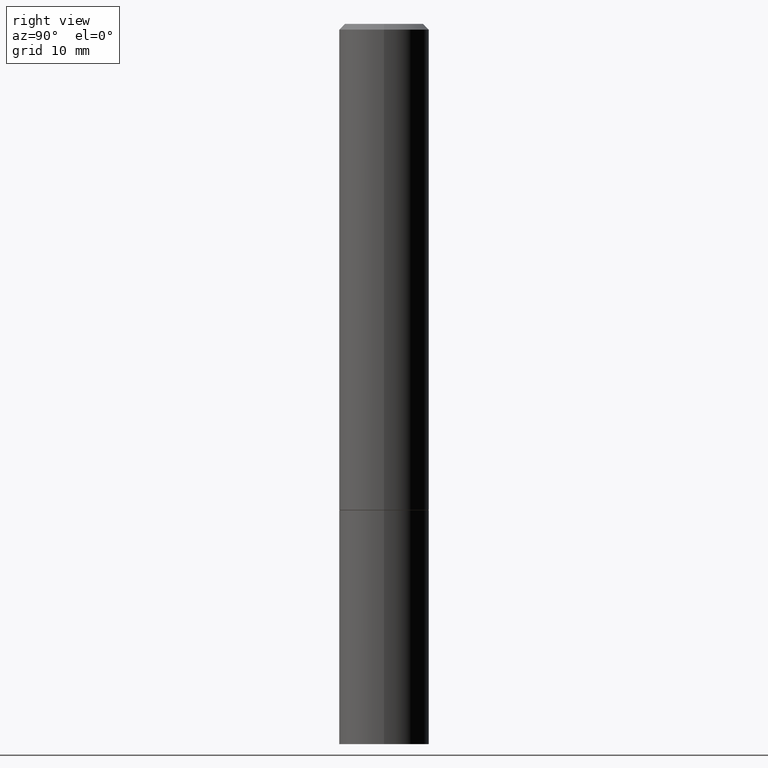
[diagram: clean part render]
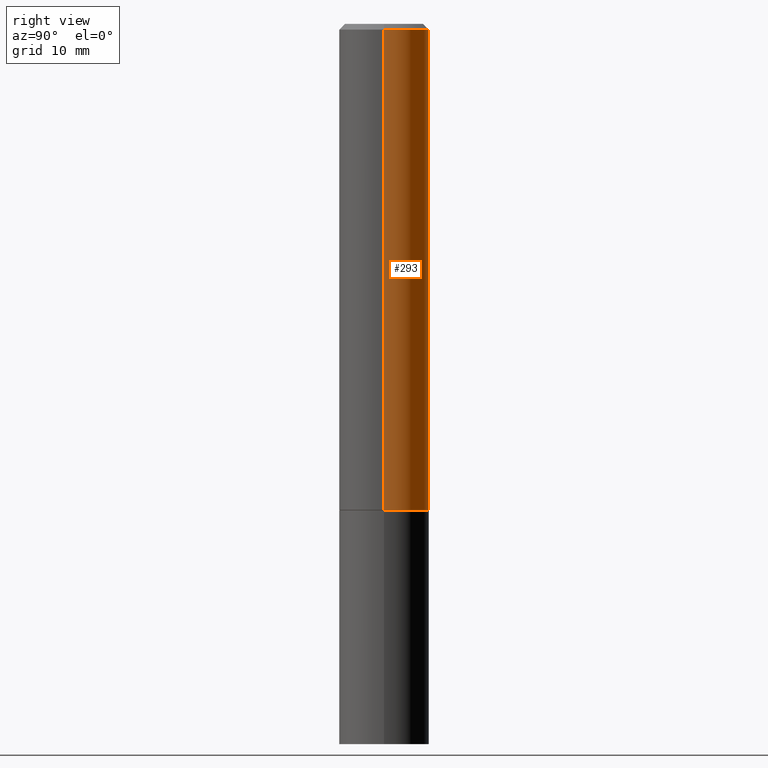
[diagram: same view with one face highlighted and labeled with its STEP entity id]
A machine part, right view. The second image highlights one B-rep face of the part: STEP entity #293.
In plain terms, the highlighted cylindrical surface (partial cylindrical patch) has radius 3.9687 mm, axis along (-0, 0, 1).
Its self-contained STEP definition (entity closure, byte-faithful):
#24 = DIRECTION ( 'NONE',  ( -2.445468806185136877E-29, 3.491481338843145188E-15, 1.000000000000000000 ) ) ;
#32 = CARTESIAN_POINT ( 'NONE',  ( 0.1562499999999999167, -1.091087918388478385E-15, 7.619026212181144772E-30 ) ) ;
#80 = LINE ( 'NONE', #363, #336 ) ;
#91 = EDGE_CURVE ( 'NONE', #157, #187, #80, .T. ) ;
#95 = VERTEX_POINT ( 'NONE', #107 ) ;
#106 = DIRECTION ( 'NONE',  ( -2.445468806185136597E-29, 3.491481338843145583E-15, 1.000000000000000000 ) ) ;
#107 = CARTESIAN_POINT ( 'NONE',  ( 0.1562500000000000000, -6.981216937016866506E-15, -1.687000000000000055 ) ) ;
#109 = DIRECTION ( 'NONE',  ( 1.000000000000000000, -6.982962677686269077E-15, 0.000000000000000000 ) ) ;
#128 = CIRCLE ( 'NONE', #274, 0.1562499999999998057 ) ;
#138 = CYLINDRICAL_SURFACE ( 'NONE', #258, 0.1562499999999999167 ) ;
#140 = CARTESIAN_POINT ( 'NONE',  ( 0.000000000000000000, 0.000000000000000000, 0.000000000000000000 ) ) ;
#157 = VERTEX_POINT ( 'NONE', #222 ) ;
#158 = EDGE_CURVE ( 'NONE', #95, #267, #194, .T. ) ;
#162 = CARTESIAN_POINT ( 'NONE',  ( 4.890937612370281041E-31, -6.982962677686302702E-17, -0.02000000000000003511 ) ) ;
#172 = DIRECTION ( 'NONE',  ( -2.445468806185136877E-29, 3.491481338843145188E-15, 1.000000000000000000 ) ) ;
#185 = ORIENTED_EDGE ( 'NONE', *, *, #158, .F. ) ;
#186 = CARTESIAN_POINT ( 'NONE',  ( 0.1562499999999998057, -1.141782438928663330E-15, -0.02000000000000003511 ) ) ;
#187 = VERTEX_POINT ( 'NONE', #284 ) ;
#194 = LINE ( 'NONE', #32, #315 ) ;
#211 = EDGE_LOOP ( 'NONE', ( #353, #265, #348, #185 ) ) ;
#222 = CARTESIAN_POINT ( 'NONE',  ( -0.1562500000000000000, -1.869756298077466803E-15, -1.687000000000000055 ) ) ;
#248 = CARTESIAN_POINT ( 'NONE',  ( 4.125505876034325766E-29, -5.890129018628387333E-15, -1.687000000000000055 ) ) ;
#258 = AXIS2_PLACEMENT_3D ( 'NONE', #140, #300, #359 ) ;
#263 = CIRCLE ( 'NONE', #294, 0.1562500000000000000 ) ;
#265 = ORIENTED_EDGE ( 'NONE', *, *, #91, .T. ) ;
#267 = VERTEX_POINT ( 'NONE', #186 ) ;
#271 = DIRECTION ( 'NONE',  ( 1.000000000000000000, -6.982962677686265133E-15, 0.000000000000000000 ) ) ;
#274 = AXIS2_PLACEMENT_3D ( 'NONE', #162, #106, #271 ) ;
#284 = CARTESIAN_POINT ( 'NONE',  ( -0.1562499999999998057, 1.021258291611614692E-15, -0.02000000000000003511 ) ) ;
#293 = ADVANCED_FACE ( 'NONE', ( #362 ), #138, .T. ) ;
#294 = AXIS2_PLACEMENT_3D ( 'NONE', #248, #310, #109 ) ;
#300 = DIRECTION ( 'NONE',  ( -2.445468806185136597E-29, 3.491481338843145583E-15, 1.000000000000000000 ) ) ;
#310 = DIRECTION ( 'NONE',  ( -2.445468806185136597E-29, 3.491481338843145583E-15, 1.000000000000000000 ) ) ;
#315 = VECTOR ( 'NONE', #172, 39.37007874015748143 ) ;
#333 = EDGE_CURVE ( 'NONE', #267, #187, #128, .T. ) ;
#336 = VECTOR ( 'NONE', #24, 39.37007874015748143 ) ;
#348 = ORIENTED_EDGE ( 'NONE', *, *, #333, .F. ) ;
#353 = ORIENTED_EDGE ( 'NONE', *, *, #364, .T. ) ;
#359 = DIRECTION ( 'NONE',  ( 1.000000000000000000, -6.982962677686265133E-15, 4.876176775795935232E-29 ) ) ;
#362 = FACE_OUTER_BOUND ( 'NONE', #211, .T. ) ;
#363 = CARTESIAN_POINT ( 'NONE',  ( -0.1562499999999999167, 1.110223024625155949E-15, -7.685836078523285555E-30 ) ) ;
#364 = EDGE_CURVE ( 'NONE', #95, #157, #263, .T. ) ;